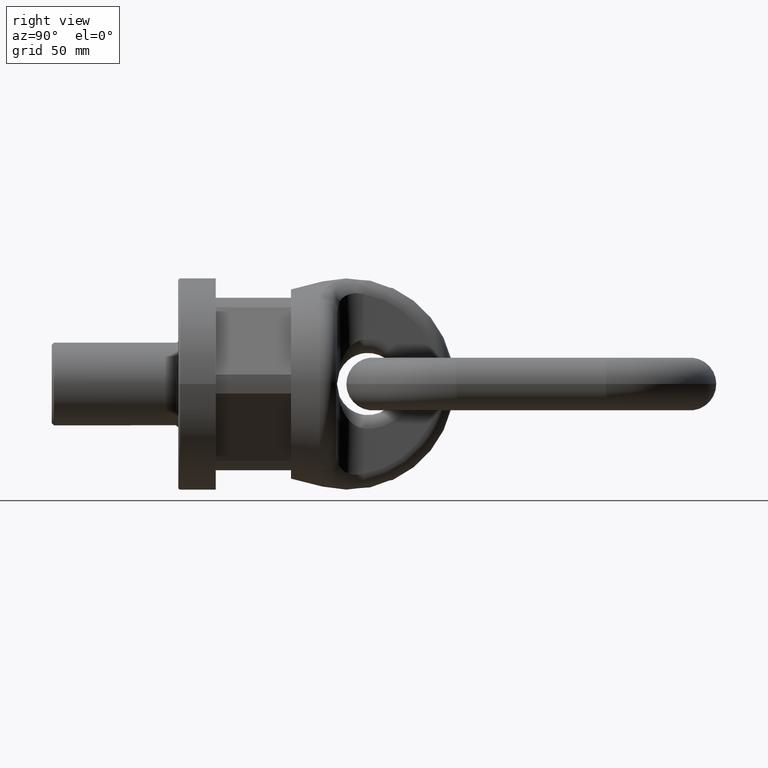
[diagram: clean part render]
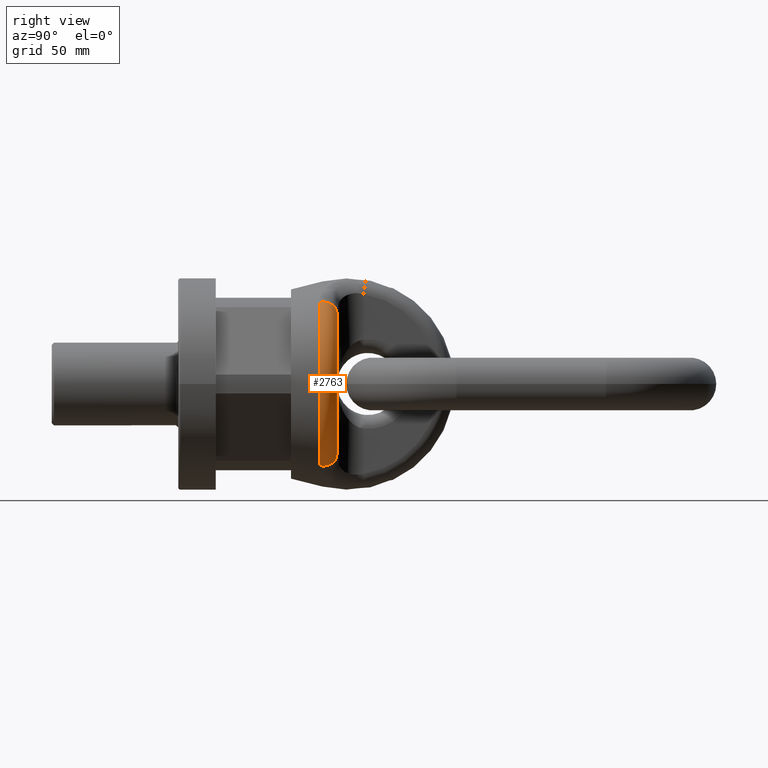
[diagram: same view with one face highlighted and labeled with its STEP entity id]
A machine part, right view. The second image highlights one B-rep face of the part: STEP entity #2763.
In plain terms, the highlighted toroidal blend (fillet) surface has major radius 38.4784 mm and minor (blend) radius 6 mm.
Its self-contained STEP definition (entity closure, byte-faithful):
#1791=TOROIDAL_SURFACE('',#5716,38.4783627265517,6.);
#1907=FACE_OUTER_BOUND('',#3207,.T.);
#2763=ADVANCED_FACE('',(#1907),#1791,.T.);
#3207=EDGE_LOOP('',(#3968,#3969,#3970,#3971));
#3968=ORIENTED_EDGE('',*,*,#5255,.T.);
#3969=ORIENTED_EDGE('',*,*,#5073,.F.);
#3970=ORIENTED_EDGE('',*,*,#5257,.F.);
#3971=ORIENTED_EDGE('',*,*,#5069,.F.);
#4641=VERTEX_POINT('',#6963);
#4643=VERTEX_POINT('',#6993);
#4655=VERTEX_POINT('',#7055);
#4656=VERTEX_POINT('',#7057);
#5069=EDGE_CURVE('',#4655,#4656,#5558,.T.);
#5073=EDGE_CURVE('',#4641,#4643,#5560,.T.);
#5255=EDGE_CURVE('',#4655,#4643,#5568,.T.);
#5257=EDGE_CURVE('',#4656,#4641,#5570,.T.);
#5558=CIRCLE('',#5651,44.2962785130341);
#5560=CIRCLE('',#5654,38.4783627265517);
#5568=CIRCLE('',#5712,6.);
#5570=CIRCLE('',#5715,6.);
#5651=AXIS2_PLACEMENT_3D('',#7056,#5973,#5974);
#5654=AXIS2_PLACEMENT_3D('',#7069,#5979,#5980);
#5712=AXIS2_PLACEMENT_3D('',#8108,#6221,#6222);
#5715=AXIS2_PLACEMENT_3D('',#8123,#6227,#6228);
#5716=AXIS2_PLACEMENT_3D('',#8124,#6229,#6230);
#5973=DIRECTION('',(0.,-1.,0.));
#5974=DIRECTION('',(0.,0.,-1.));
#5979=DIRECTION('',(0.,1.,0.));
#5980=DIRECTION('',(0.,0.,1.));
#6221=DIRECTION('',(0.80169111814578,3.456370205684E-16,0.597738530702321));
#6222=DIRECTION('',(0.597738530702321,0.,-0.80169111814578));
#6227=DIRECTION('',(-0.80169111814578,-3.456370205684E-16,0.597738530702321));
#6228=DIRECTION('',(0.597738530702321,0.,0.80169111814578));
#6229=DIRECTION('',(0.,1.,0.));
#6230=DIRECTION('',(0.,0.,1.));
#6963=CARTESIAN_POINT('',(23.,69.,30.8477616386681));
#6993=CARTESIAN_POINT('',(23.,69.,-30.8477616386681));
#7055=CARTESIAN_POINT('',(26.4775924339618,61.5330794495273,-35.5119330508112));
#7056=CARTESIAN_POINT('',(0.,61.5330794495273,0.));
#7057=CARTESIAN_POINT('',(26.4775924339618,61.5330794495273,35.5119330508112));
#7069=CARTESIAN_POINT('',(0.,69.,0.));
#8108=CARTESIAN_POINT('',(23.,63.,-30.8477616386681));
#8123=CARTESIAN_POINT('',(23.,63.,30.8477616386681));
#8124=CARTESIAN_POINT('',(0.,63.,0.));